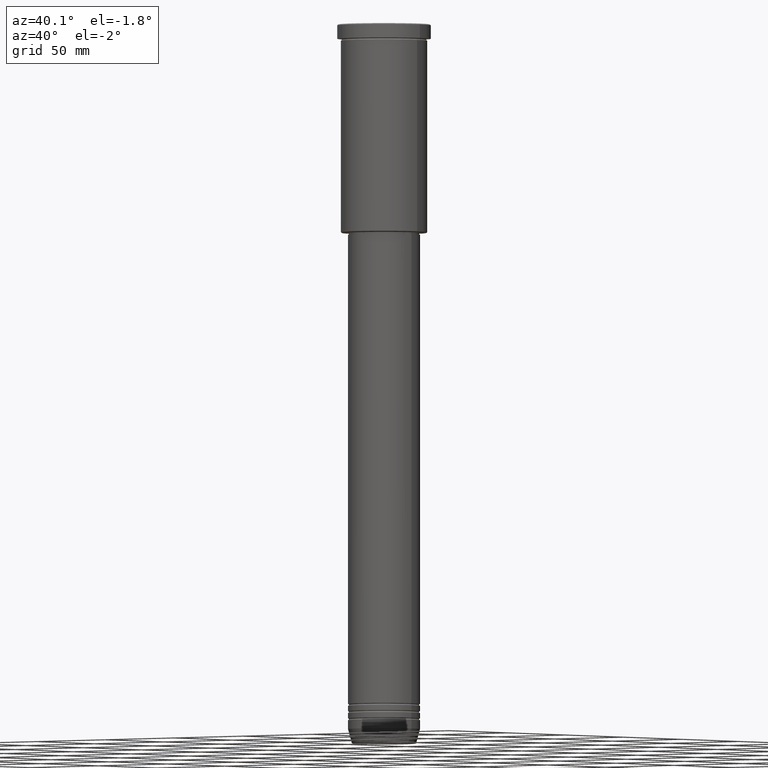
[diagram: clean part render]
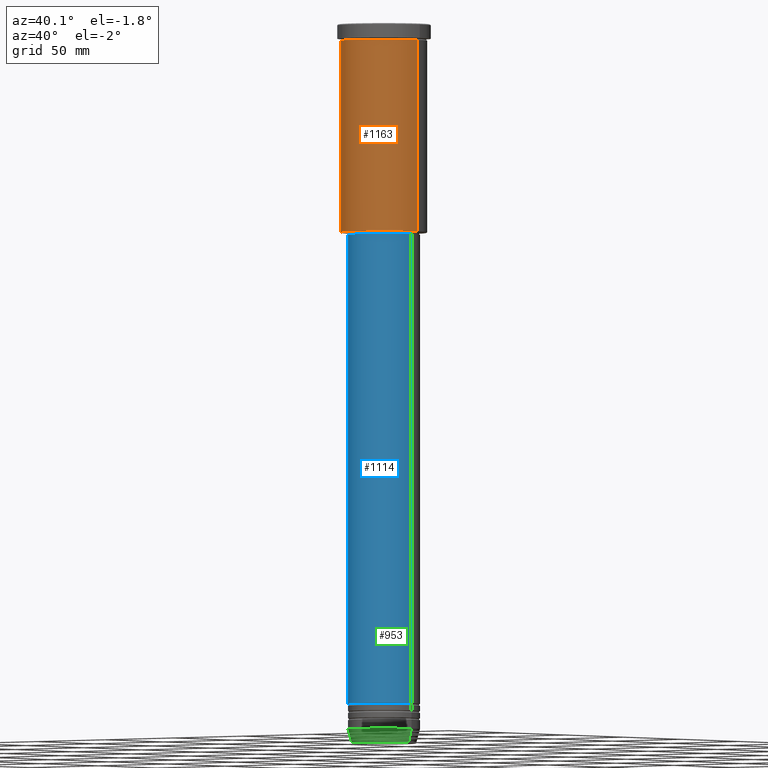
[diagram: same view with three faces highlighted in distinct colors, each labeled with its STEP entity id]
A machine part, auxiliary view with three faces highlighted in distinct colors.
Their STEP definitions:

[orange] entity #1163 — the highlighted cylindrical surface (partial cylindrical patch) has radius 24 mm, axis along (-0, -0, 1).
#39 = VECTOR ( 'NONE', #915, 1000.000000000000000 ) ;
#90 = CARTESIAN_POINT ( 'NONE',  ( 24.00000000000000000, 0.000000000000000000, 0.000000000000000000 ) ) ;
#236 = CARTESIAN_POINT ( 'NONE',  ( 0.000000000000000000, 0.000000000000000000, -8.999999999999994671 ) ) ;
#237 = EDGE_CURVE ( 'NONE', #470, #968, #1056, .T. ) ;
#274 = LINE ( 'NONE', #90, #39 ) ;
#313 = CARTESIAN_POINT ( 'NONE',  ( -24.00000000000000000, 2.939152317953647894E-15, -115.4999999999999574 ) ) ;
#357 = CARTESIAN_POINT ( 'NONE',  ( 24.00000000000000000, 0.000000000000000000, -115.4999999999999574 ) ) ;
#358 = EDGE_CURVE ( 'NONE', #684, #942, #374, .T. ) ;
#374 = CIRCLE ( 'NONE', #1021, 24.00000000000000000 ) ;
#394 = EDGE_LOOP ( 'NONE', ( #435, #815, #625, #808 ) ) ;
#411 = EDGE_CURVE ( 'NONE', #968, #942, #274, .T. ) ;
#432 = DIRECTION ( 'NONE',  ( 1.000000000000000000, 0.000000000000000000, 0.000000000000000000 ) ) ;
#435 = ORIENTED_EDGE ( 'NONE', *, *, #1148, .F. ) ;
#458 = LINE ( 'NONE', #634, #1058 ) ;
#470 = VERTEX_POINT ( 'NONE', #313 ) ;
#560 = CYLINDRICAL_SURFACE ( 'NONE', #681, 24.00000000000000000 ) ;
#625 = ORIENTED_EDGE ( 'NONE', *, *, #411, .T. ) ;
#634 = CARTESIAN_POINT ( 'NONE',  ( -24.00000000000000000, 2.939152317953647894E-15, 0.000000000000000000 ) ) ;
#636 = AXIS2_PLACEMENT_3D ( 'NONE', #1039, #949, #675 ) ;
#675 = DIRECTION ( 'NONE',  ( -1.000000000000000000, 0.000000000000000000, 0.000000000000000000 ) ) ;
#681 = AXIS2_PLACEMENT_3D ( 'NONE', #989, #1083, #1173 ) ;
#684 = VERTEX_POINT ( 'NONE', #1002 ) ;
#804 = CARTESIAN_POINT ( 'NONE',  ( 24.00000000000000000, 0.000000000000000000, -8.999999999999994671 ) ) ;
#808 = ORIENTED_EDGE ( 'NONE', *, *, #358, .F. ) ;
#815 = ORIENTED_EDGE ( 'NONE', *, *, #237, .T. ) ;
#825 = DIRECTION ( 'NONE',  ( -0.000000000000000000, -0.000000000000000000, 1.000000000000000000 ) ) ;
#834 = FACE_OUTER_BOUND ( 'NONE', #394, .T. ) ;
#915 = DIRECTION ( 'NONE',  ( -0.000000000000000000, -0.000000000000000000, 1.000000000000000000 ) ) ;
#942 = VERTEX_POINT ( 'NONE', #804 ) ;
#949 = DIRECTION ( 'NONE',  ( -0.000000000000000000, -0.000000000000000000, 1.000000000000000000 ) ) ;
#968 = VERTEX_POINT ( 'NONE', #357 ) ;
#970 = DIRECTION ( 'NONE',  ( -0.000000000000000000, -0.000000000000000000, 1.000000000000000000 ) ) ;
#989 = CARTESIAN_POINT ( 'NONE',  ( 0.000000000000000000, 0.000000000000000000, 0.000000000000000000 ) ) ;
#1002 = CARTESIAN_POINT ( 'NONE',  ( -24.00000000000000000, 2.939152317953647894E-15, -8.999999999999994671 ) ) ;
#1021 = AXIS2_PLACEMENT_3D ( 'NONE', #236, #970, #432 ) ;
#1039 = CARTESIAN_POINT ( 'NONE',  ( 0.000000000000000000, 0.000000000000000000, -115.4999999999999574 ) ) ;
#1056 = CIRCLE ( 'NONE', #636, 24.00000000000000000 ) ;
#1058 = VECTOR ( 'NONE', #825, 1000.000000000000000 ) ;
#1083 = DIRECTION ( 'NONE',  ( -0.000000000000000000, -0.000000000000000000, 1.000000000000000000 ) ) ;
#1148 = EDGE_CURVE ( 'NONE', #470, #684, #458, .T. ) ;
#1163 = ADVANCED_FACE ( 'NONE', ( #834 ), #560, .T. ) ;
#1173 = DIRECTION ( 'NONE',  ( 1.000000000000000000, 0.000000000000000000, 0.000000000000000000 ) ) ;

[blue] entity #1114 — the highlighted cylindrical surface (edge-blend (fillet) strip) has radius 20 mm, axis along (-0, -0, 1).
#56 = ORIENTED_EDGE ( 'NONE', *, *, #941, .T. ) ;
#68 = LINE ( 'NONE', #436, #813 ) ;
#72 = EDGE_LOOP ( 'NONE', ( #585, #199, #56, #689 ) ) ;
#80 = EDGE_CURVE ( 'NONE', #476, #159, #917, .T. ) ;
#85 = CARTESIAN_POINT ( 'NONE',  ( 0.000000000000000000, 0.000000000000000000, -378.0000000000000000 ) ) ;
#103 = EDGE_CURVE ( 'NONE', #476, #354, #443, .T. ) ;
#159 = VERTEX_POINT ( 'NONE', #306 ) ;
#199 = ORIENTED_EDGE ( 'NONE', *, *, #103, .T. ) ;
#202 = EDGE_CURVE ( 'NONE', #159, #1140, #507, .T. ) ;
#215 = CARTESIAN_POINT ( 'NONE',  ( 0.000000000000000000, 0.000000000000000000, -116.9999999999999147 ) ) ;
#252 = FACE_OUTER_BOUND ( 'NONE', #72, .T. ) ;
#306 = CARTESIAN_POINT ( 'NONE',  ( -20.00000000000000355, 2.449293598294706907E-15, -116.9999999999999147 ) ) ;
#315 = DIRECTION ( 'NONE',  ( -0.000000000000000000, -0.000000000000000000, 1.000000000000000000 ) ) ;
#320 = DIRECTION ( 'NONE',  ( -0.000000000000000000, -0.000000000000000000, 1.000000000000000000 ) ) ;
#346 = CYLINDRICAL_SURFACE ( 'NONE', #1075, 20.00000000000000355 ) ;
#354 = VERTEX_POINT ( 'NONE', #425 ) ;
#425 = CARTESIAN_POINT ( 'NONE',  ( 20.00000000000000355, 0.000000000000000000, -378.0000000000000000 ) ) ;
#436 = CARTESIAN_POINT ( 'NONE',  ( 20.00000000000000355, 0.000000000000000000, 0.000000000000000000 ) ) ;
#441 = DIRECTION ( 'NONE',  ( -0.000000000000000000, -0.000000000000000000, 1.000000000000000000 ) ) ;
#443 = CIRCLE ( 'NONE', #621, 20.00000000000000355 ) ;
#451 = DIRECTION ( 'NONE',  ( 1.000000000000000000, 0.000000000000000000, 0.000000000000000000 ) ) ;
#476 = VERTEX_POINT ( 'NONE', #685 ) ;
#507 = CIRCLE ( 'NONE', #1172, 20.00000000000000355 ) ;
#558 = DIRECTION ( 'NONE',  ( -0.000000000000000000, -0.000000000000000000, 1.000000000000000000 ) ) ;
#585 = ORIENTED_EDGE ( 'NONE', *, *, #80, .F. ) ;
#621 = AXIS2_PLACEMENT_3D ( 'NONE', #85, #320, #770 ) ;
#685 = CARTESIAN_POINT ( 'NONE',  ( -20.00000000000000355, 2.449293598294706907E-15, -378.0000000000000000 ) ) ;
#689 = ORIENTED_EDGE ( 'NONE', *, *, #202, .F. ) ;
#770 = DIRECTION ( 'NONE',  ( 1.000000000000000000, 0.000000000000000000, 0.000000000000000000 ) ) ;
#813 = VECTOR ( 'NONE', #1053, 1000.000000000000000 ) ;
#832 = CARTESIAN_POINT ( 'NONE',  ( -20.00000000000000355, 2.449293598294706907E-15, 0.000000000000000000 ) ) ;
#905 = CARTESIAN_POINT ( 'NONE',  ( 0.000000000000000000, 0.000000000000000000, 0.000000000000000000 ) ) ;
#917 = LINE ( 'NONE', #832, #956 ) ;
#941 = EDGE_CURVE ( 'NONE', #354, #1140, #68, .T. ) ;
#946 = DIRECTION ( 'NONE',  ( 1.000000000000000000, 0.000000000000000000, 0.000000000000000000 ) ) ;
#956 = VECTOR ( 'NONE', #558, 1000.000000000000000 ) ;
#1013 = CARTESIAN_POINT ( 'NONE',  ( 20.00000000000000355, 0.000000000000000000, -116.9999999999999147 ) ) ;
#1053 = DIRECTION ( 'NONE',  ( -0.000000000000000000, -0.000000000000000000, 1.000000000000000000 ) ) ;
#1075 = AXIS2_PLACEMENT_3D ( 'NONE', #905, #441, #451 ) ;
#1114 = ADVANCED_FACE ( 'NONE', ( #252 ), #346, .T. ) ;
#1140 = VERTEX_POINT ( 'NONE', #1013 ) ;
#1172 = AXIS2_PLACEMENT_3D ( 'NONE', #215, #315, #946 ) ;

[green] entity #953 — the highlighted conical surface has half-angle 15 deg.
#16 = VERTEX_POINT ( 'NONE', #565 ) ;
#22 = CIRCLE ( 'NONE', #1074, 20.00000000000000355 ) ;
#23 = ORIENTED_EDGE ( 'NONE', *, *, #1183, .T. ) ;
#70 = DIRECTION ( 'NONE',  ( 1.000000000000000000, 0.000000000000000000, 0.000000000000000000 ) ) ;
#100 = CIRCLE ( 'NONE', #214, 17.95570587970608045 ) ;
#160 = VERTEX_POINT ( 'NONE', #595 ) ;
#168 = DIRECTION ( 'NONE',  ( -0.000000000000000000, -0.000000000000000000, 1.000000000000000000 ) ) ;
#194 = DIRECTION ( 'NONE',  ( -0.2588190451025212391, 3.169619151431771721E-17, 0.9659258262890680902 ) ) ;
#214 = AXIS2_PLACEMENT_3D ( 'NONE', #282, #168, #347 ) ;
#235 = FACE_OUTER_BOUND ( 'NONE', #559, .T. ) ;
#257 = DIRECTION ( 'NONE',  ( 0.2588190451025212391, 0.000000000000000000, 0.9659258262890680902 ) ) ;
#272 = CARTESIAN_POINT ( 'NONE',  ( -20.00000000000000355, 2.449293598294706907E-15, -392.0000000000000000 ) ) ;
#282 = CARTESIAN_POINT ( 'NONE',  ( 0.000000000000000000, 0.000000000000000000, -399.6294095225512706 ) ) ;
#347 = DIRECTION ( 'NONE',  ( 1.000000000000000000, 0.000000000000000000, 0.000000000000000000 ) ) ;
#366 = ORIENTED_EDGE ( 'NONE', *, *, #644, .F. ) ;
#384 = LINE ( 'NONE', #1001, #1171 ) ;
#488 = AXIS2_PLACEMENT_3D ( 'NONE', #561, #934, #926 ) ;
#532 = DIRECTION ( 'NONE',  ( -0.000000000000000000, -0.000000000000000000, 1.000000000000000000 ) ) ;
#559 = EDGE_LOOP ( 'NONE', ( #995, #23, #1029, #366 ) ) ;
#561 = CARTESIAN_POINT ( 'NONE',  ( 0.000000000000000000, 0.000000000000000000, -392.0000000000000000 ) ) ;
#565 = CARTESIAN_POINT ( 'NONE',  ( 17.95570587970608045, 0.000000000000000000, -399.6294095225512706 ) ) ;
#595 = CARTESIAN_POINT ( 'NONE',  ( 20.00000000000000355, 0.000000000000000000, -392.0000000000000000 ) ) ;
#644 = EDGE_CURVE ( 'NONE', #749, #160, #22, .T. ) ;
#716 = CARTESIAN_POINT ( 'NONE',  ( 0.000000000000000000, 0.000000000000000000, -392.0000000000000000 ) ) ;
#749 = VERTEX_POINT ( 'NONE', #944 ) ;
#896 = VERTEX_POINT ( 'NONE', #1078 ) ;
#926 = DIRECTION ( 'NONE',  ( 1.000000000000000000, 0.000000000000000000, 0.000000000000000000 ) ) ;
#934 = DIRECTION ( 'NONE',  ( -0.000000000000000000, -0.000000000000000000, 1.000000000000000000 ) ) ;
#944 = CARTESIAN_POINT ( 'NONE',  ( -20.00000000000000355, 2.449293598294706907E-15, -392.0000000000000000 ) ) ;
#953 = ADVANCED_FACE ( 'NONE', ( #235 ), #960, .T. ) ;
#960 = CONICAL_SURFACE ( 'NONE', #488, 20.00000000000000355, 0.2617993877991499629 ) ;
#995 = ORIENTED_EDGE ( 'NONE', *, *, #1033, .F. ) ;
#1001 = CARTESIAN_POINT ( 'NONE',  ( 20.00000000000000355, 0.000000000000000000, -392.0000000000000000 ) ) ;
#1029 = ORIENTED_EDGE ( 'NONE', *, *, #1054, .T. ) ;
#1033 = EDGE_CURVE ( 'NONE', #896, #749, #1105, .T. ) ;
#1054 = EDGE_CURVE ( 'NONE', #16, #160, #384, .T. ) ;
#1074 = AXIS2_PLACEMENT_3D ( 'NONE', #716, #532, #70 ) ;
#1078 = CARTESIAN_POINT ( 'NONE',  ( -17.95570587970608045, 2.324116685748021371E-15, -399.6294095225512706 ) ) ;
#1105 = LINE ( 'NONE', #272, #1153 ) ;
#1153 = VECTOR ( 'NONE', #194, 1000.000000000000114 ) ;
#1171 = VECTOR ( 'NONE', #257, 1000.000000000000114 ) ;
#1183 = EDGE_CURVE ( 'NONE', #896, #16, #100, .T. ) ;